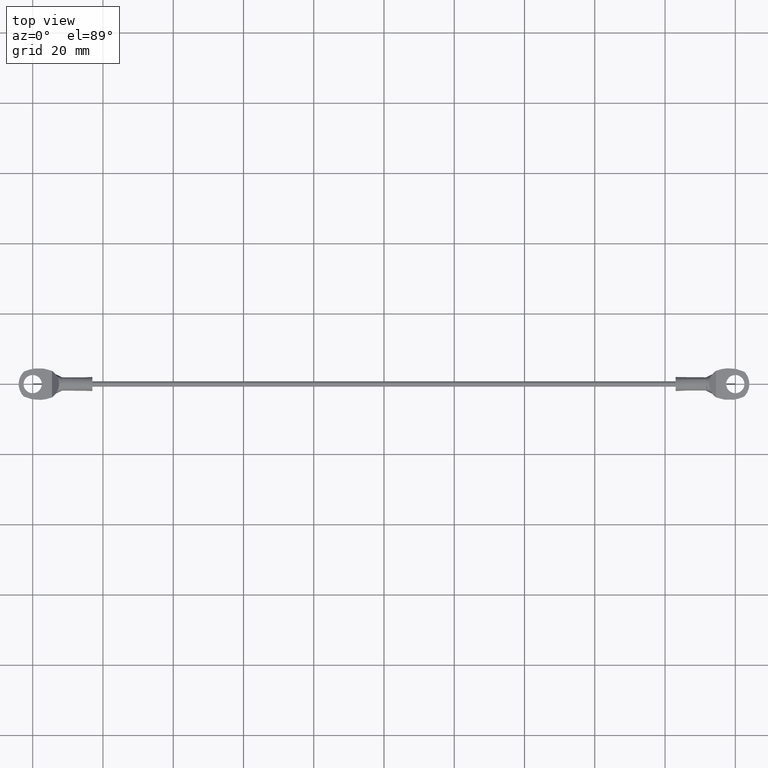
[diagram: clean part render]
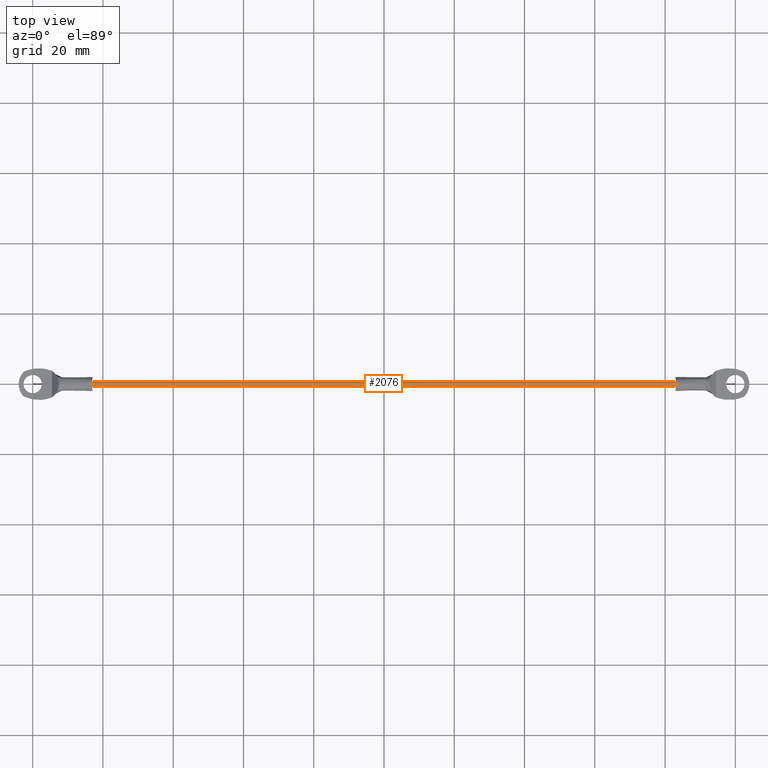
[diagram: same view with one face highlighted and labeled with its STEP entity id]
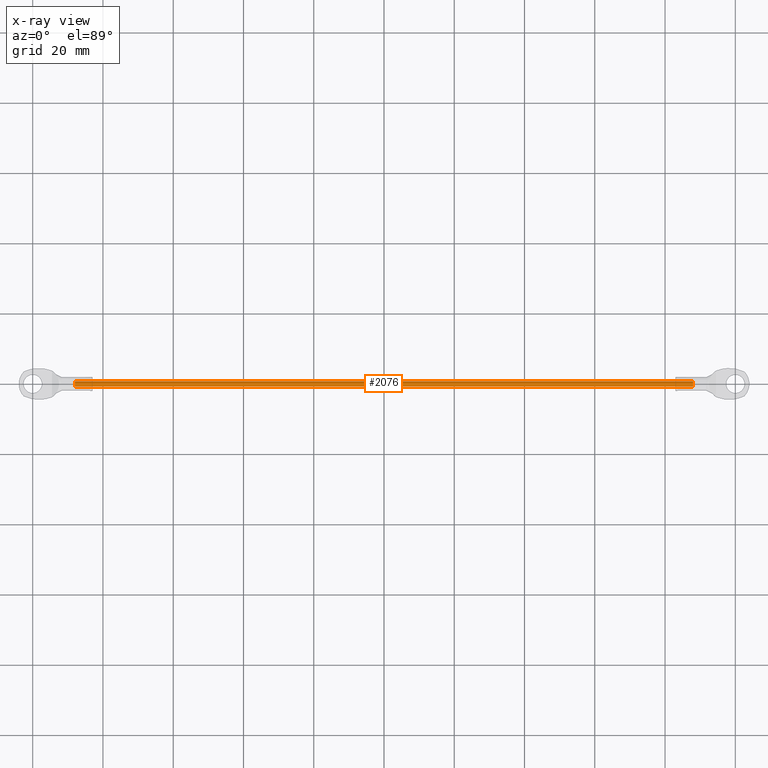
[diagram: x-ray of the same camera — body ghosted, the highlighted face saturated]
A machine part, top view. The second image highlights one B-rep face of the part: STEP entity #2076.
The next image is the same camera in x-ray: the body ghosted, the highlighted face saturated — about 0% of this face is hidden behind the body in this view.
In plain terms, the highlighted face is a freeform B-spline surface patch.
Its self-contained STEP definition (entity closure, byte-faithful):
#1913=CARTESIAN_POINT('',(-11.999999999999989,0.744757144720459,2.088525676432488));
#1914=VERTEX_POINT('',#1913);
#1932=CARTESIAN_POINT('',(-11.999999999999989,-0.748601098783436,1.954213594809890));
#1933=VERTEX_POINT('',#1932);
#1947=CARTESIAN_POINT('',(-188.0,-0.748601098783436,1.954213594809890));
#1948=VERTEX_POINT('',#1947);
#1949=CARTESIAN_POINT('',(-11.999999999999989,-0.748601098783436,1.954213594809890));
#1950=CARTESIAN_POINT('',(-188.0,-0.748601098783436,1.954213594809890));
#1951=QUASI_UNIFORM_CURVE('',1,(#1949,#1950),.UNSPECIFIED.,.F.,.U.);
#1952=EDGE_CURVE('',#1933,#1948,#1951,.T.);
#1969=CARTESIAN_POINT('',(-188.0,0.744757144720459,2.088525676432489));
#1970=VERTEX_POINT('',#1969);
#1986=CARTESIAN_POINT('',(-11.999999999999989,0.744757144720459,2.088525676432488));
#1987=CARTESIAN_POINT('',(-188.0,0.744757144720459,2.088525676432489));
#1988=QUASI_UNIFORM_CURVE('',1,(#1986,#1987),.UNSPECIFIED.,.F.,.U.);
#1989=EDGE_CURVE('',#1914,#1970,#1988,.T.);
#1994=CARTESIAN_POINT('',(-7.599999999999993,-0.748601098816400,1.954213595348857));
#1995=CARTESIAN_POINT('',(-7.599999999999993,-0.794387503467543,2.702814694165257));
#1996=CARTESIAN_POINT('',(-7.599999999999993,-0.045786404651143,2.748601098816400));
#1997=CARTESIAN_POINT('',(-7.599999999999994,0.661157618129626,2.791839647549395));
#1998=CARTESIAN_POINT('',(-7.599999999999993,0.744757144772750,2.088525675992569));
#1999=CARTESIAN_POINT('',(-192.510000000000100,-0.748601098816400,1.954213595348857));
#2000=CARTESIAN_POINT('',(-192.510000000000050,-0.794387503467543,2.702814694165257));
#2001=CARTESIAN_POINT('',(-192.510000000000100,-0.045786404651143,2.748601098816400));
#2002=CARTESIAN_POINT('',(-192.510000000000020,0.661157618129626,2.791839647549395));
#2003=CARTESIAN_POINT('',(-192.510000000000050,0.744757144772750,2.088525675992569));
#2011=(BOUNDED_SURFACE()B_SPLINE_SURFACE(2,1,((#1994,#1999),(#1995,#2000),(#1996,#2001),(#1997,#2002),(#1998,#2003)),.UNSPECIFIED.,.F.,.F.,.U.)B_SPLINE_SURFACE_WITH_KNOTS((3,2,3),(2,2),(0.0,1.570796326794897,3.078760800517997),(0.0,184.910000000000110),.UNSPECIFIED.)GEOMETRIC_REPRESENTATION_ITEM()RATIONAL_B_SPLINE_SURFACE(((1.0,1.0),(0.707106781186548,0.707106781186548),(1.0,1.0),(0.718822509939086,0.718822509939086),(0.977505800795127,0.977505800795127)))REPRESENTATION_ITEM('')SURFACE());
#2012=CARTESIAN_POINT('',(-12.0,0.0,2.750000000000000));
#2013=VERTEX_POINT('',#2012);
#2014=CARTESIAN_POINT('',(-12.0,0.0,2.750000000000000));
#2015=CARTESIAN_POINT('',(-12.000000000000002,0.666130893671034,2.750000000000001));
#2016=CARTESIAN_POINT('',(-11.999999999999995,0.744757144720459,2.088525676432489));
#2024=(BOUNDED_CURVE()B_SPLINE_CURVE(2,(#2014,#2015,#2016),.UNSPECIFIED.,.F.,.U.)B_SPLINE_CURVE_WITH_KNOTS((3,3),(0.0,0.229562473315988),.UNSPECIFIED.)CURVE()GEOMETRIC_REPRESENTATION_ITEM()RATIONAL_B_SPLINE_CURVE((1.0,0.731050833086813,0.956026753796550))REPRESENTATION_ITEM(''));
#2025=EDGE_CURVE('',#2013,#1914,#2024,.T.);
#2026=ORIENTED_EDGE('',*,*,#2025,.T.);
#2027=ORIENTED_EDGE('',*,*,#1989,.T.);
#2028=CARTESIAN_POINT('',(-188.0,0.0,2.750000000000000));
#2029=VERTEX_POINT('',#2028);
#2030=CARTESIAN_POINT('',(-188.0,0.0,2.750000000000000));
#2031=CARTESIAN_POINT('',(-188.000000000000060,0.666130893671033,2.750000000000000));
#2032=CARTESIAN_POINT('',(-188.000000000000060,0.744757144720459,2.088525676432489));
#2040=(BOUNDED_CURVE()B_SPLINE_CURVE(2,(#2030,#2031,#2032),.UNSPECIFIED.,.F.,.U.)B_SPLINE_CURVE_WITH_KNOTS((3,3),(0.0,0.229562473315988),.UNSPECIFIED.)CURVE()GEOMETRIC_REPRESENTATION_ITEM()RATIONAL_B_SPLINE_CURVE((1.0,0.731050833086813,0.956026753796550))REPRESENTATION_ITEM(''));
#2041=EDGE_CURVE('',#2029,#1970,#2040,.T.);
#2042=ORIENTED_EDGE('',*,*,#2041,.F.);
#2043=CARTESIAN_POINT('',(-188.000000000000060,-0.748601098783436,1.954213594809889));
#2044=CARTESIAN_POINT('',(-188.000000000000030,-0.750000000000000,1.977085426985579));
#2045=CARTESIAN_POINT('',(-188.0,-0.750000000000000,2.0));
#2046=CARTESIAN_POINT('',(-188.000000000000090,-0.750000000000000,2.750000000000000));
#2047=CARTESIAN_POINT('',(-188.0,0.0,2.750000000000000));
#2055=(BOUNDED_CURVE()B_SPLINE_CURVE(2,(#2043,#2044,#2045,#2046,#2047),.UNSPECIFIED.,.F.,.U.)B_SPLINE_CURVE_WITH_KNOTS((3,2,3),(0.739332961993512,0.750000000000000,1.0),.UNSPECIFIED.)CURVE()GEOMETRIC_REPRESENTATION_ITEM()RATIONAL_B_SPLINE_CURVE((0.976072041140714,0.987502787612298,1.0,0.707106781186548,1.0))REPRESENTATION_ITEM(''));
#2056=EDGE_CURVE('',#1948,#2029,#2055,.T.);
#2057=ORIENTED_EDGE('',*,*,#2056,.F.);
#2058=ORIENTED_EDGE('',*,*,#1952,.F.);
#2059=CARTESIAN_POINT('',(-11.999999999999991,-0.748601098783436,1.954213594809890));
#2060=CARTESIAN_POINT('',(-11.999999999999995,-0.750000000000000,1.977085426985579));
#2061=CARTESIAN_POINT('',(-12.0,-0.750000000000000,2.0));
#2062=CARTESIAN_POINT('',(-12.0,-0.750000000000000,2.750000000000000));
#2063=CARTESIAN_POINT('',(-12.0,0.0,2.750000000000000));
#2071=(BOUNDED_CURVE()B_SPLINE_CURVE(2,(#2059,#2060,#2061,#2062,#2063),.UNSPECIFIED.,.F.,.U.)B_SPLINE_CURVE_WITH_KNOTS((3,2,3),(0.739332961993513,0.750000000000000,1.0),.UNSPECIFIED.)CURVE()GEOMETRIC_REPRESENTATION_ITEM()RATIONAL_B_SPLINE_CURVE((0.976072041140714,0.987502787612298,1.0,0.707106781186548,1.0))REPRESENTATION_ITEM(''));
#2072=EDGE_CURVE('',#1933,#2013,#2071,.T.);
#2073=ORIENTED_EDGE('',*,*,#2072,.T.);
#2074=EDGE_LOOP('',(#2026,#2027,#2042,#2057,#2058,#2073));
#2075=FACE_OUTER_BOUND('',#2074,.T.);
#2076=ADVANCED_FACE('',(#2075),#2011,.T.);